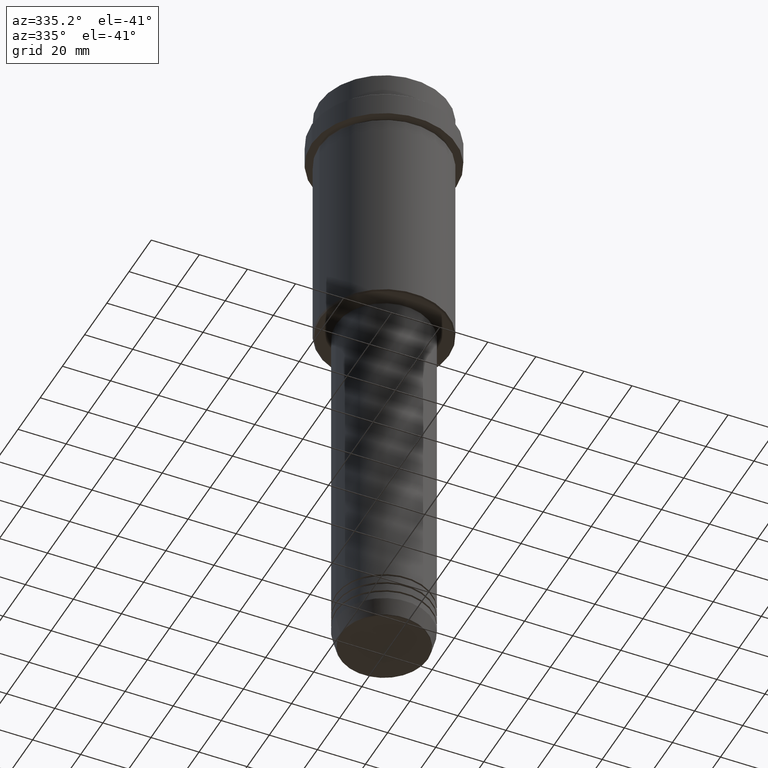
[diagram: clean part render]
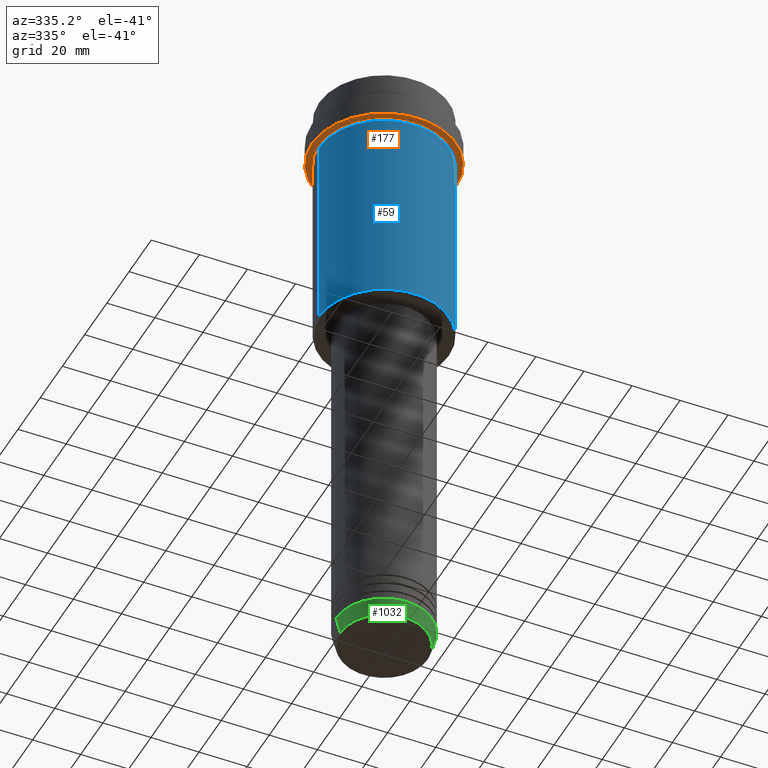
[diagram: same view with three faces highlighted in distinct colors, each labeled with its STEP entity id]
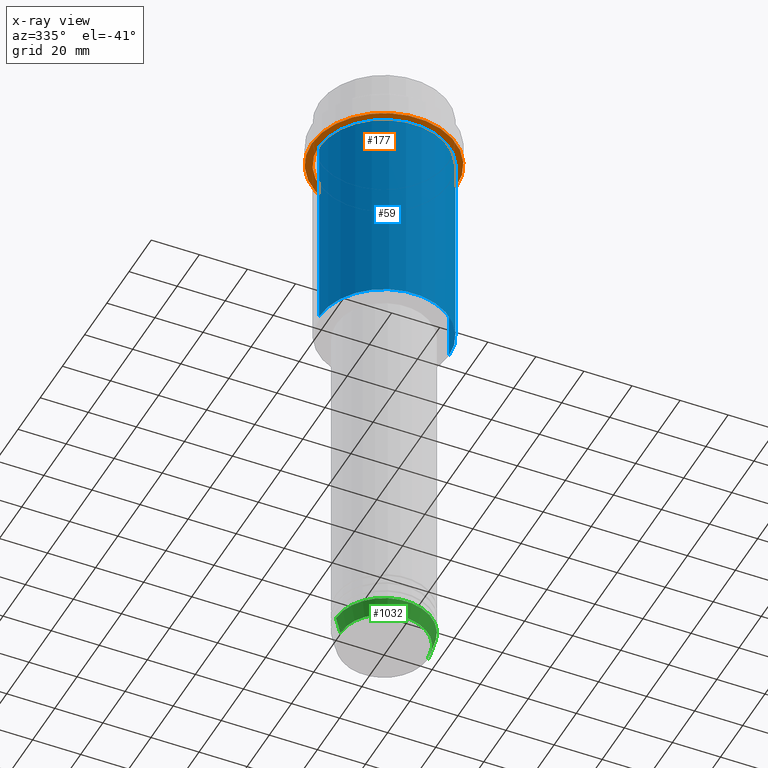
[diagram: x-ray of the same camera — body ghosted, the three highlighted faces saturated]
A machine part, auxiliary view with three faces highlighted in distinct colors.
The next image is the same camera in x-ray (body ghosted, the three faces saturated) — at least one of them is partly hidden behind the body in this view.
Their STEP definitions:

[orange] entity #177 — the highlighted planar face has unit normal (0, 0, -1).
#16 = DIRECTION ( 'NONE',  ( 0.000000000000000000, 0.000000000000000000, -1.000000000000000000 ) ) ;
#79 = FACE_BOUND ( 'NONE', #1287, .T. ) ;
#111 = ORIENTED_EDGE ( 'NONE', *, *, #1216, .T. ) ;
#118 = VERTEX_POINT ( 'NONE', #303 ) ;
#130 = AXIS2_PLACEMENT_3D ( 'NONE', #622, #1054, #953 ) ;
#173 = AXIS2_PLACEMENT_3D ( 'NONE', #583, #1009, #1111 ) ;
#176 = VERTEX_POINT ( 'NONE', #1270 ) ;
#177 = ADVANCED_FACE ( 'NONE', ( #79, #519 ), #1399, .T. ) ;
#210 = EDGE_CURVE ( 'NONE', #176, #650, #793, .T. ) ;
#215 = ORIENTED_EDGE ( 'NONE', *, *, #707, .F. ) ;
#248 = CARTESIAN_POINT ( 'NONE',  ( 0.000000000000000000, 0.000000000000000000, -22.00000000000000355 ) ) ;
#264 = AXIS2_PLACEMENT_3D ( 'NONE', #248, #1330, #272 ) ;
#272 = DIRECTION ( 'NONE',  ( 1.000000000000000000, 0.000000000000000000, 0.000000000000000000 ) ) ;
#303 = CARTESIAN_POINT ( 'NONE',  ( -29.99999999999999645, 3.673940397442058389E-15, -22.00000000000000355 ) ) ;
#462 = DIRECTION ( 'NONE',  ( -1.000000000000000000, 0.000000000000000000, -0.000000000000000000 ) ) ;
#471 = AXIS2_PLACEMENT_3D ( 'NONE', #1073, #16, #462 ) ;
#508 = ORIENTED_EDGE ( 'NONE', *, *, #210, .T. ) ;
#519 = FACE_OUTER_BOUND ( 'NONE', #1070, .T. ) ;
#542 = CARTESIAN_POINT ( 'NONE',  ( 26.99999999999999289, 3.306546357697852944E-15, -22.00000000000000000 ) ) ;
#583 = CARTESIAN_POINT ( 'NONE',  ( 0.000000000000000000, 0.000000000000000000, -22.00000000000000000 ) ) ;
#594 = DIRECTION ( 'NONE',  ( -0.000000000000000000, -0.000000000000000000, 1.000000000000000000 ) ) ;
#622 = CARTESIAN_POINT ( 'NONE',  ( 0.000000000000000000, 0.000000000000000000, -22.00000000000000000 ) ) ;
#650 = VERTEX_POINT ( 'NONE', #542 ) ;
#707 = EDGE_CURVE ( 'NONE', #118, #1002, #1255, .T. ) ;
#744 = CIRCLE ( 'NONE', #130, 26.99999999999999289 ) ;
#759 = AXIS2_PLACEMENT_3D ( 'NONE', #1034, #594, #1007 ) ;
#793 = CIRCLE ( 'NONE', #173, 26.99999999999999289 ) ;
#865 = CARTESIAN_POINT ( 'NONE',  ( 29.99999999999999645, 0.000000000000000000, -22.00000000000000355 ) ) ;
#953 = DIRECTION ( 'NONE',  ( -1.000000000000000000, 0.000000000000000000, 0.000000000000000000 ) ) ;
#1002 = VERTEX_POINT ( 'NONE', #865 ) ;
#1007 = DIRECTION ( 'NONE',  ( 1.000000000000000000, 0.000000000000000000, 0.000000000000000000 ) ) ;
#1009 = DIRECTION ( 'NONE',  ( -0.000000000000000000, -0.000000000000000000, 1.000000000000000000 ) ) ;
#1016 = CIRCLE ( 'NONE', #264, 29.99999999999999645 ) ;
#1034 = CARTESIAN_POINT ( 'NONE',  ( 0.000000000000000000, 0.000000000000000000, -22.00000000000000355 ) ) ;
#1054 = DIRECTION ( 'NONE',  ( -0.000000000000000000, -0.000000000000000000, 1.000000000000000000 ) ) ;
#1070 = EDGE_LOOP ( 'NONE', ( #1273, #215 ) ) ;
#1073 = CARTESIAN_POINT ( 'NONE',  ( 0.000000000000000000, 29.99999999999999645, -22.00000000000000000 ) ) ;
#1111 = DIRECTION ( 'NONE',  ( -1.000000000000000000, 0.000000000000000000, 0.000000000000000000 ) ) ;
#1216 = EDGE_CURVE ( 'NONE', #650, #176, #744, .T. ) ;
#1255 = CIRCLE ( 'NONE', #759, 29.99999999999999645 ) ;
#1270 = CARTESIAN_POINT ( 'NONE',  ( -26.99999999999999289, 0.000000000000000000, -22.00000000000000000 ) ) ;
#1273 = ORIENTED_EDGE ( 'NONE', *, *, #1410, .F. ) ;
#1287 = EDGE_LOOP ( 'NONE', ( #508, #111 ) ) ;
#1330 = DIRECTION ( 'NONE',  ( -0.000000000000000000, -0.000000000000000000, 1.000000000000000000 ) ) ;
#1399 = PLANE ( 'NONE',  #471 ) ;
#1410 = EDGE_CURVE ( 'NONE', #1002, #118, #1016, .T. ) ;

[blue] entity #59 — the highlighted cylindrical surface (partial cylindrical patch) has radius 27 mm, axis along (-0, -0, 1).
#3 = DIRECTION ( 'NONE',  ( -0.000000000000000000, -0.000000000000000000, 1.000000000000000000 ) ) ;
#45 = VERTEX_POINT ( 'NONE', #463 ) ;
#58 = CYLINDRICAL_SURFACE ( 'NONE', #1379, 26.99999999999999645 ) ;
#59 = ADVANCED_FACE ( 'NONE', ( #1389 ), #58, .T. ) ;
#73 = DIRECTION ( 'NONE',  ( 1.000000000000000000, 0.000000000000000000, 0.000000000000000000 ) ) ;
#229 = DIRECTION ( 'NONE',  ( -0.000000000000000000, -0.000000000000000000, 1.000000000000000000 ) ) ;
#250 = CARTESIAN_POINT ( 'NONE',  ( 26.99999999999999645, 0.000000000000000000, -23.00000000000000000 ) ) ;
#325 = EDGE_CURVE ( 'NONE', #45, #1036, #474, .T. ) ;
#327 = ORIENTED_EDGE ( 'NONE', *, *, #1180, .T. ) ;
#368 = AXIS2_PLACEMENT_3D ( 'NONE', #984, #3, #1309 ) ;
#401 = DIRECTION ( 'NONE',  ( -0.000000000000000000, -0.000000000000000000, 1.000000000000000000 ) ) ;
#463 = CARTESIAN_POINT ( 'NONE',  ( -26.99999999999999645, 3.306546357697853339E-15, -107.5000000000000000 ) ) ;
#474 = CIRCLE ( 'NONE', #656, 26.99999999999999645 ) ;
#475 = VECTOR ( 'NONE', #401, 1000.000000000000000 ) ;
#532 = LINE ( 'NONE', #733, #475 ) ;
#637 = ORIENTED_EDGE ( 'NONE', *, *, #325, .T. ) ;
#656 = AXIS2_PLACEMENT_3D ( 'NONE', #1055, #1387, #1137 ) ;
#665 = ORIENTED_EDGE ( 'NONE', *, *, #1253, .F. ) ;
#670 = CARTESIAN_POINT ( 'NONE',  ( -26.99999999999999645, 3.306546357697853339E-15, 0.000000000000000000 ) ) ;
#733 = CARTESIAN_POINT ( 'NONE',  ( 26.99999999999999645, 0.000000000000000000, 0.000000000000000000 ) ) ;
#738 = DIRECTION ( 'NONE',  ( -0.000000000000000000, -0.000000000000000000, 1.000000000000000000 ) ) ;
#832 = EDGE_CURVE ( 'NONE', #1241, #922, #976, .T. ) ;
#922 = VERTEX_POINT ( 'NONE', #250 ) ;
#976 = CIRCLE ( 'NONE', #368, 26.99999999999999645 ) ;
#984 = CARTESIAN_POINT ( 'NONE',  ( 0.000000000000000000, 0.000000000000000000, -23.00000000000000000 ) ) ;
#1036 = VERTEX_POINT ( 'NONE', #1135 ) ;
#1055 = CARTESIAN_POINT ( 'NONE',  ( 0.000000000000000000, 0.000000000000000000, -107.5000000000000000 ) ) ;
#1129 = VECTOR ( 'NONE', #229, 1000.000000000000000 ) ;
#1135 = CARTESIAN_POINT ( 'NONE',  ( 26.99999999999999645, 0.000000000000000000, -107.5000000000000000 ) ) ;
#1137 = DIRECTION ( 'NONE',  ( -1.000000000000000000, 0.000000000000000000, 0.000000000000000000 ) ) ;
#1157 = CARTESIAN_POINT ( 'NONE',  ( 0.000000000000000000, 0.000000000000000000, 0.000000000000000000 ) ) ;
#1180 = EDGE_CURVE ( 'NONE', #1036, #922, #532, .T. ) ;
#1200 = LINE ( 'NONE', #670, #1129 ) ;
#1241 = VERTEX_POINT ( 'NONE', #1416 ) ;
#1253 = EDGE_CURVE ( 'NONE', #45, #1241, #1200, .T. ) ;
#1271 = ORIENTED_EDGE ( 'NONE', *, *, #832, .F. ) ;
#1309 = DIRECTION ( 'NONE',  ( 1.000000000000000000, 0.000000000000000000, 0.000000000000000000 ) ) ;
#1379 = AXIS2_PLACEMENT_3D ( 'NONE', #1157, #738, #73 ) ;
#1387 = DIRECTION ( 'NONE',  ( -0.000000000000000000, -0.000000000000000000, 1.000000000000000000 ) ) ;
#1389 = FACE_OUTER_BOUND ( 'NONE', #1413, .T. ) ;
#1413 = EDGE_LOOP ( 'NONE', ( #665, #637, #327, #1271 ) ) ;
#1416 = CARTESIAN_POINT ( 'NONE',  ( -26.99999999999999645, 3.306546357697853339E-15, -23.00000000000000000 ) ) ;

[green] entity #1032 — the highlighted conical surface has half-angle 15 deg.
#63 = CARTESIAN_POINT ( 'NONE',  ( 20.00000000000000000, 0.000000000000000000, -256.0000000000000000 ) ) ;
#85 = CARTESIAN_POINT ( 'NONE',  ( 0.000000000000000000, 0.000000000000000000, -256.0000000000000000 ) ) ;
#128 = DIRECTION ( 'NONE',  ( 0.2588190451025213501, 0.000000000000000000, 0.9659258262890680902 ) ) ;
#139 = EDGE_CURVE ( 'NONE', #688, #349, #1239, .T. ) ;
#174 = AXIS2_PLACEMENT_3D ( 'NONE', #1026, #262, #706 ) ;
#192 = EDGE_CURVE ( 'NONE', #688, #1392, #798, .T. ) ;
#237 = ORIENTED_EDGE ( 'NONE', *, *, #1341, .T. ) ;
#262 = DIRECTION ( 'NONE',  ( -0.000000000000000000, -0.000000000000000000, 1.000000000000000000 ) ) ;
#349 = VERTEX_POINT ( 'NONE', #507 ) ;
#397 = DIRECTION ( 'NONE',  ( -0.000000000000000000, -0.000000000000000000, 1.000000000000000000 ) ) ;
#419 = CARTESIAN_POINT ( 'NONE',  ( 0.000000000000000000, 0.000000000000000000, -262.6294095225512706 ) ) ;
#500 = DIRECTION ( 'NONE',  ( 1.000000000000000000, 0.000000000000000000, 0.000000000000000000 ) ) ;
#507 = CARTESIAN_POINT ( 'NONE',  ( 18.22365507213718772, 0.000000000000000000, -262.6294095225512706 ) ) ;
#512 = ORIENTED_EDGE ( 'NONE', *, *, #1228, .F. ) ;
#516 = CONICAL_SURFACE ( 'NONE', #174, 20.00000000000000000, 0.2617993877991500740 ) ;
#544 = AXIS2_PLACEMENT_3D ( 'NONE', #419, #397, #500 ) ;
#638 = DIRECTION ( 'NONE',  ( -0.000000000000000000, -0.000000000000000000, 1.000000000000000000 ) ) ;
#672 = CARTESIAN_POINT ( 'NONE',  ( -18.22365507213718772, 2.340523841790264718E-15, -262.6294095225512706 ) ) ;
#683 = VECTOR ( 'NONE', #128, 1000.000000000000000 ) ;
#688 = VERTEX_POINT ( 'NONE', #672 ) ;
#706 = DIRECTION ( 'NONE',  ( 1.000000000000000000, 0.000000000000000000, 0.000000000000000000 ) ) ;
#798 = LINE ( 'NONE', #921, #836 ) ;
#836 = VECTOR ( 'NONE', #1214, 1000.000000000000000 ) ;
#917 = CARTESIAN_POINT ( 'NONE',  ( -20.00000000000000000, 2.449293598294706513E-15, -256.0000000000000000 ) ) ;
#921 = CARTESIAN_POINT ( 'NONE',  ( -20.00000000000000000, 2.449293598294706513E-15, -256.0000000000000000 ) ) ;
#933 = AXIS2_PLACEMENT_3D ( 'NONE', #85, #638, #958 ) ;
#952 = CIRCLE ( 'NONE', #933, 20.00000000000000000 ) ;
#958 = DIRECTION ( 'NONE',  ( 1.000000000000000000, 0.000000000000000000, 0.000000000000000000 ) ) ;
#1005 = ORIENTED_EDGE ( 'NONE', *, *, #192, .F. ) ;
#1026 = CARTESIAN_POINT ( 'NONE',  ( 0.000000000000000000, 0.000000000000000000, -256.0000000000000000 ) ) ;
#1032 = ADVANCED_FACE ( 'NONE', ( #1237 ), #516, .T. ) ;
#1079 = LINE ( 'NONE', #1321, #683 ) ;
#1182 = VERTEX_POINT ( 'NONE', #63 ) ;
#1214 = DIRECTION ( 'NONE',  ( -0.2588190451025213501, 3.169619151431772337E-17, 0.9659258262890680902 ) ) ;
#1228 = EDGE_CURVE ( 'NONE', #1392, #1182, #952, .T. ) ;
#1237 = FACE_OUTER_BOUND ( 'NONE', #1395, .T. ) ;
#1239 = CIRCLE ( 'NONE', #544, 18.22365507213718772 ) ;
#1293 = ORIENTED_EDGE ( 'NONE', *, *, #139, .T. ) ;
#1321 = CARTESIAN_POINT ( 'NONE',  ( 20.00000000000000000, 0.000000000000000000, -256.0000000000000000 ) ) ;
#1341 = EDGE_CURVE ( 'NONE', #349, #1182, #1079, .T. ) ;
#1392 = VERTEX_POINT ( 'NONE', #917 ) ;
#1395 = EDGE_LOOP ( 'NONE', ( #1005, #1293, #237, #512 ) ) ;